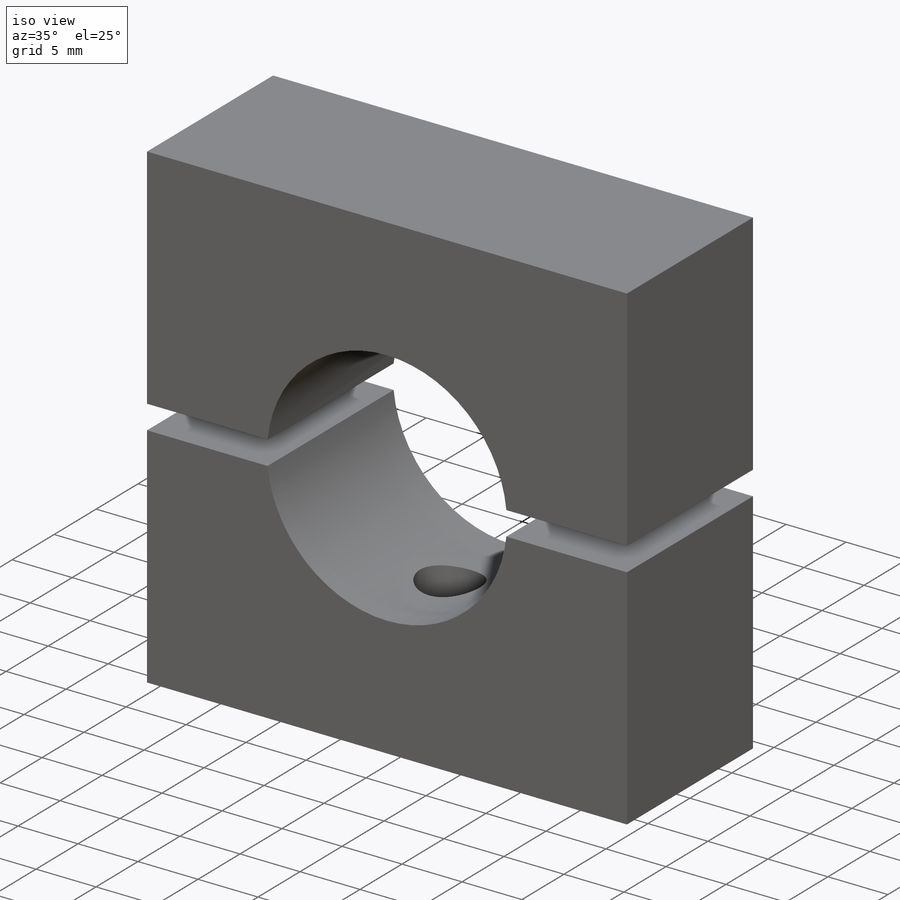
[diagram: iso view]
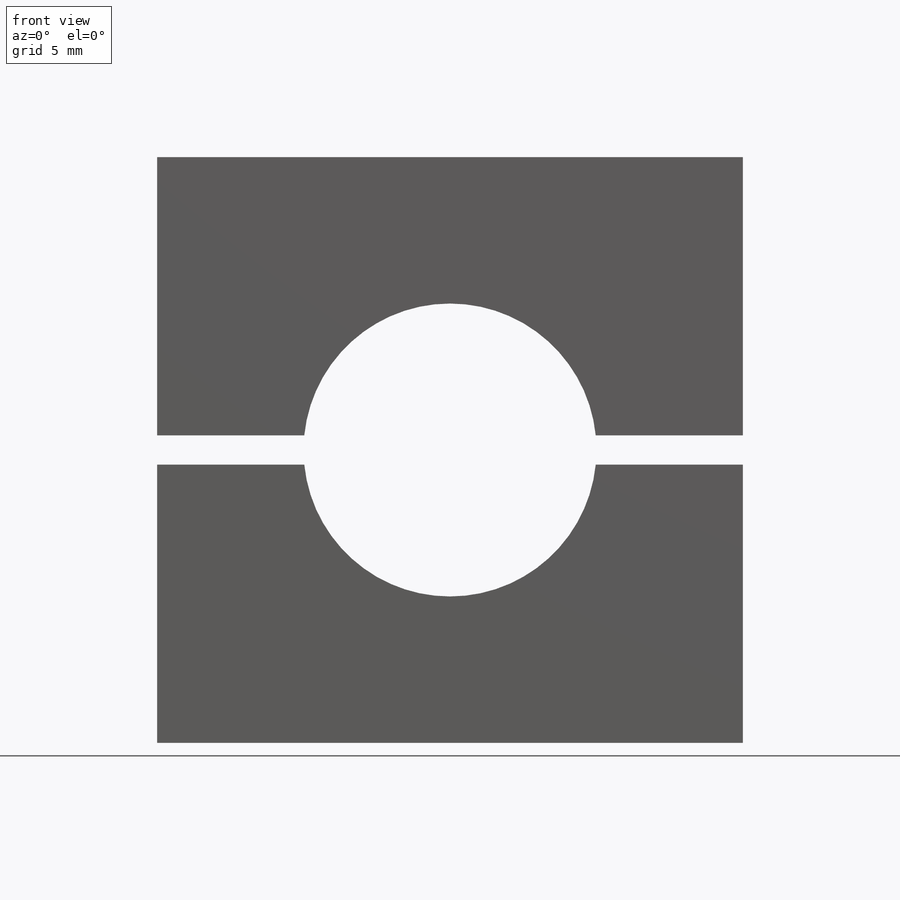
[diagram: front view]
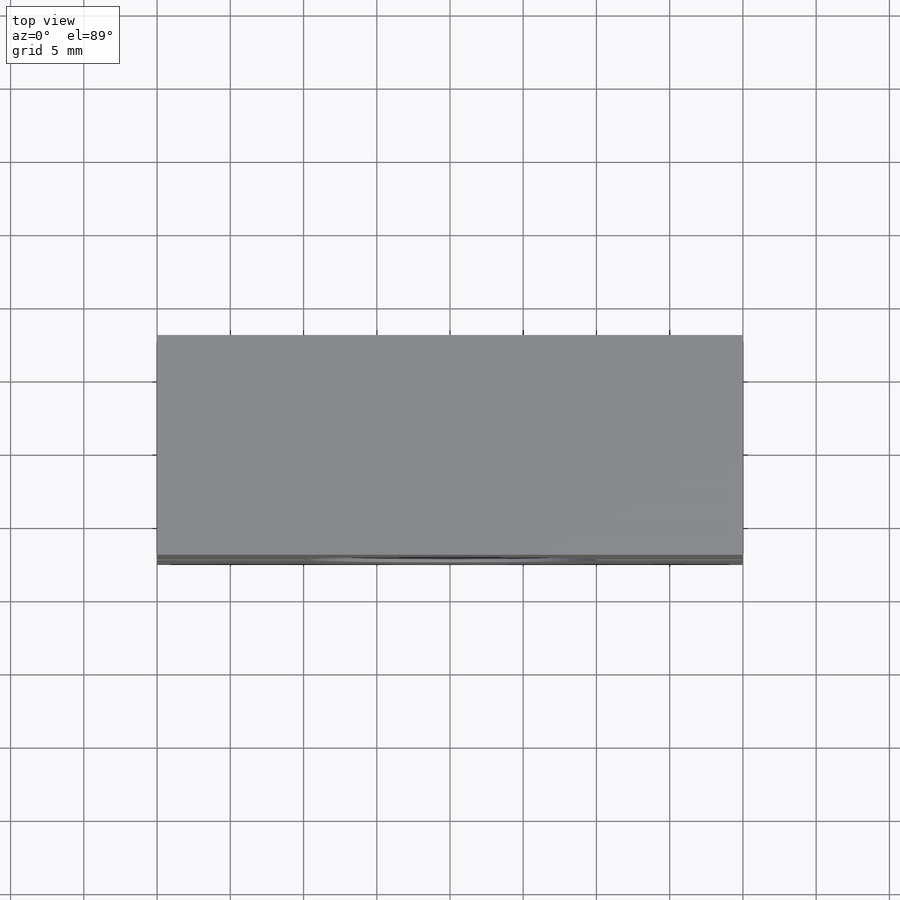
[diagram: top view]
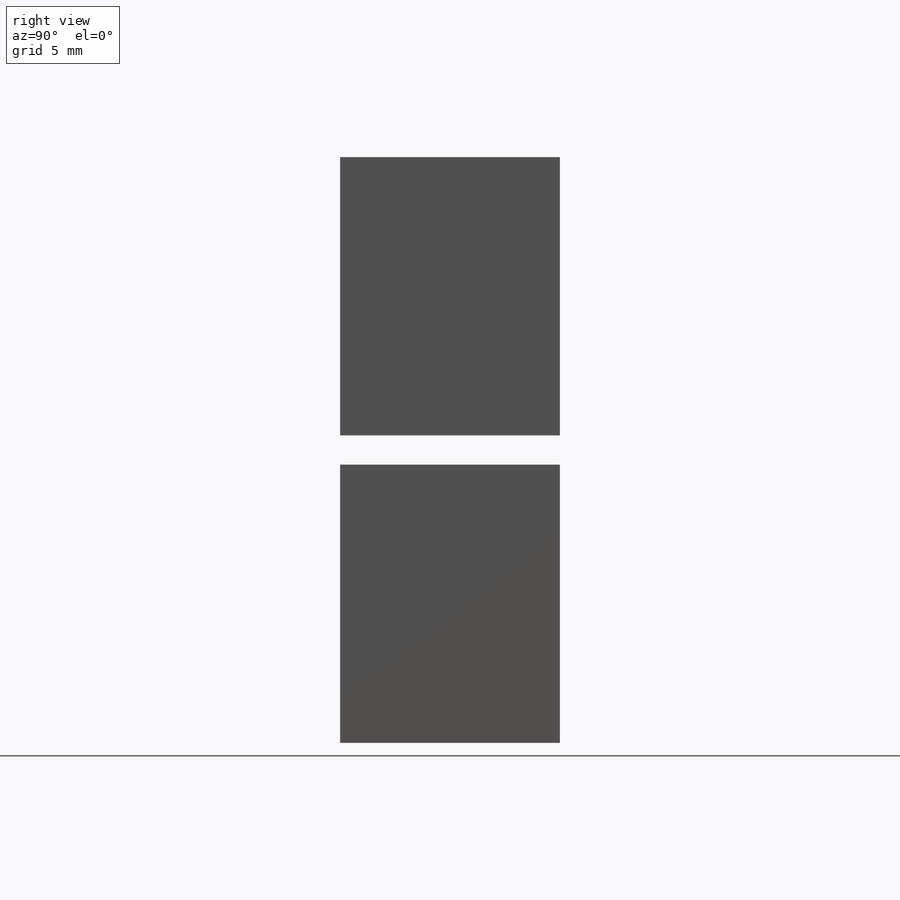
[diagram: right view]
SOLIDWORKS PART (.sldprt)
format: sldprt  version: not decoded by parser v0  size: 209,920 bytes
history: native  units: mm
features: sketch x4, plane x3, material x1, extrude x1, cut_extrude x1, hole x1, thread x1 (+12 scaffold rows collapsed)
feature tree (24):
  scaffold x12  (default folders/planes/origin — collapsed)
  material  "Alu 6061 schwarz eloxiert"
  plane  "Ebene vorne"
  plane  "Ebene oben"
  plane  "Ebene rechts"
  sketch  "Skizze1"  dims[D2=20.0mm D1=40.0mm]
  extrude  "Linear austragen1"  Depth=15mm
  sketch  "Skizze2"  dims[D1=2.0mm]
  cut_extrude  "Linear austragen2"  [1 undecoded]
  hole  "M6 Gewindebohrung1"  Diameter=5mm Depth=10mm
  sketch  "Skizze8"
  sketch  "Skizze7"  dims[hole-wizard template sketch: 54 standard entries collapsed; hole parameters kept: c17.Bohrerdurchmesser=5.0mm c17.Bohrungstiefe=10.0mm c17.Senkdurchmesser (Oben)=6.5mm c17.D4=~3.666174mm c17.Senkwinkel (Oben)=90.0deg]
  thread  "Bohrungsgewinde3"  Diameter=6mm  [1 undecoded]
decode coverage: 6 of 8 modeling features carry decoded parameters
note: ~ marks probable driven/reference dimensions
note: 2 parameter values undecoded
note: suppression state not decoded; provenance and decode notes live in map.json
